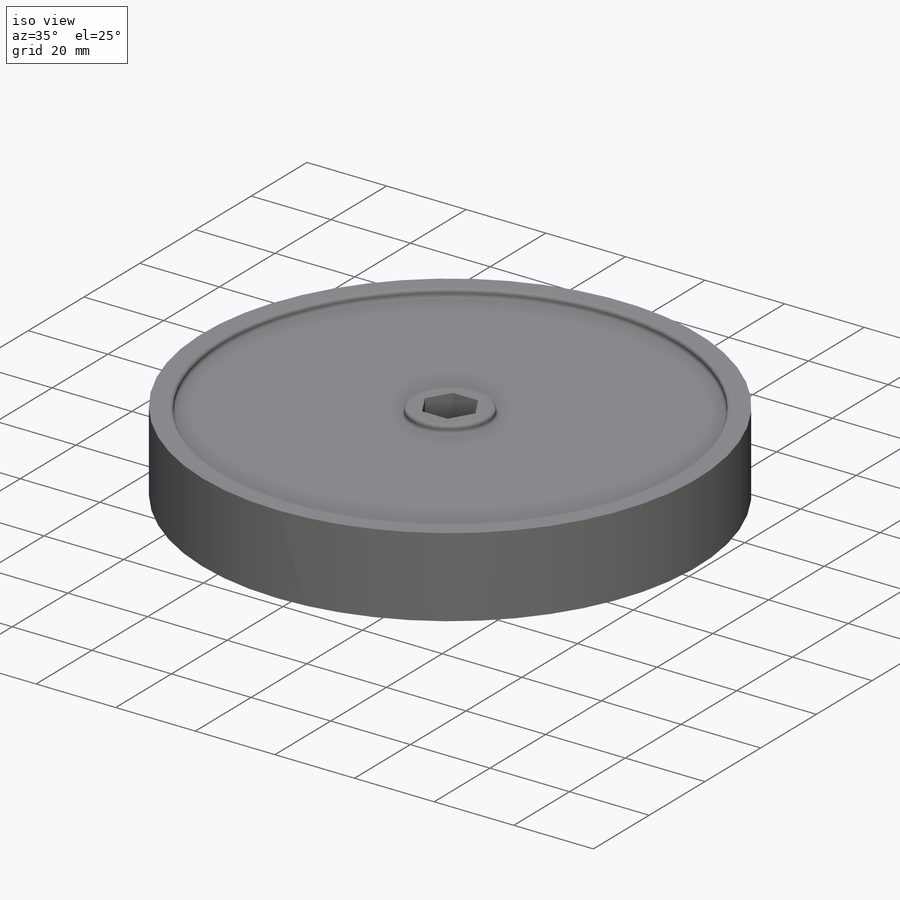
[diagram: iso view]
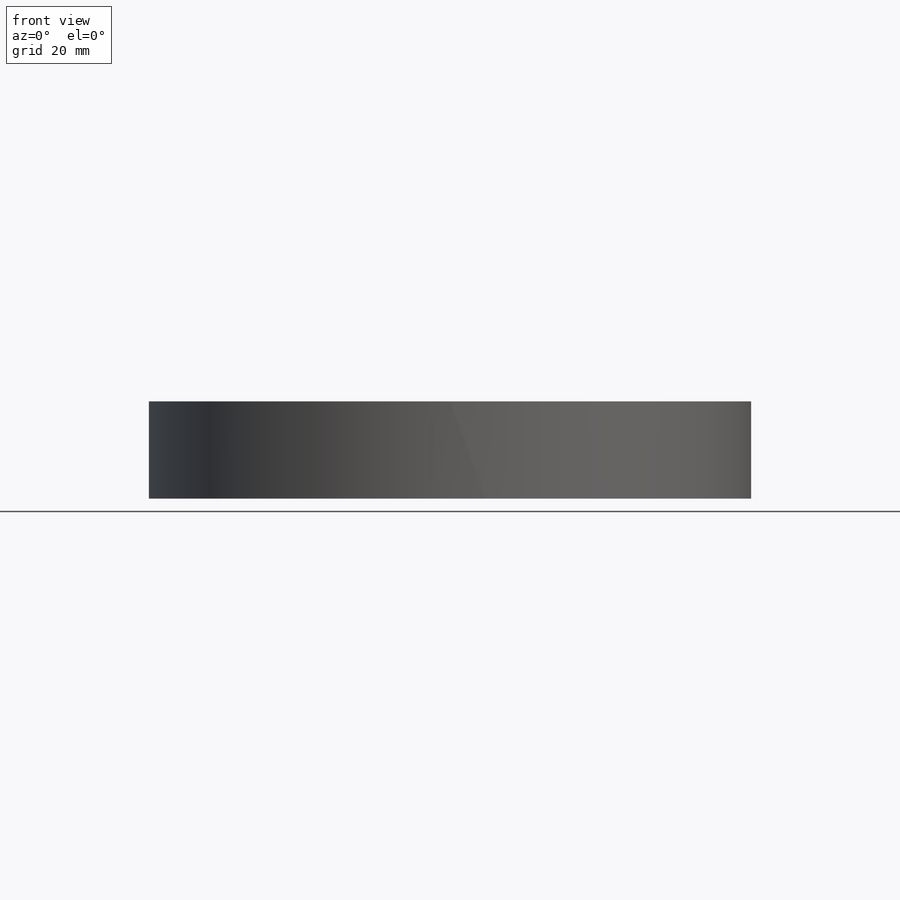
[diagram: front view]
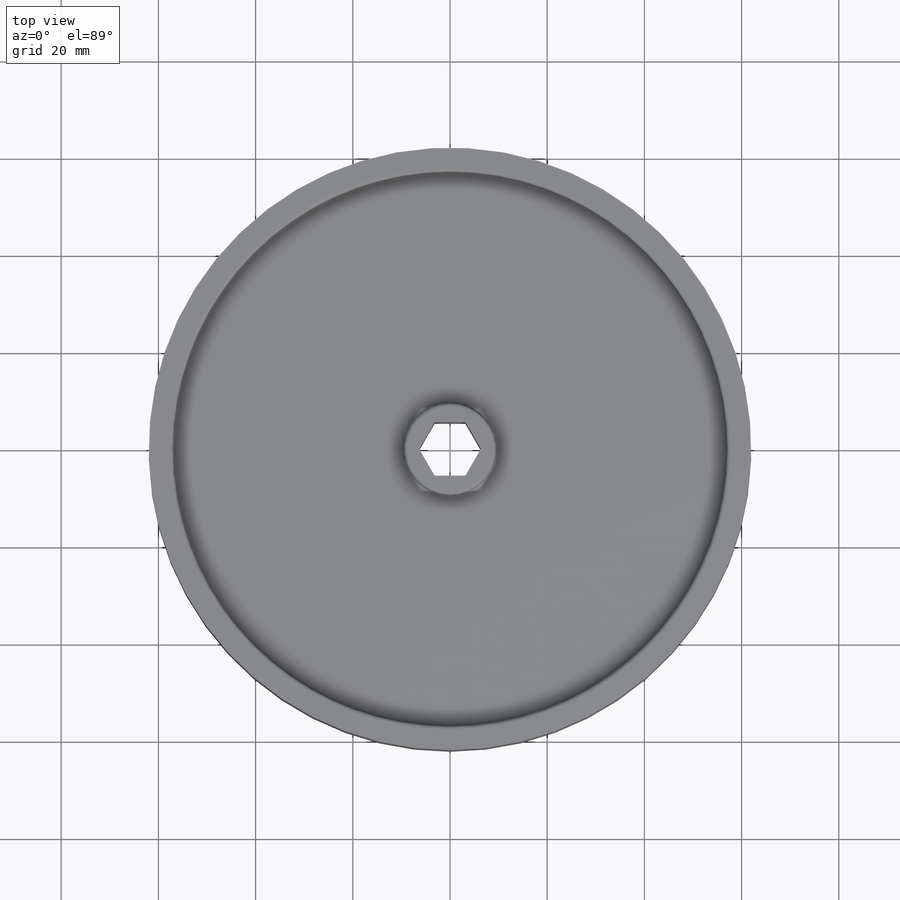
[diagram: top view]
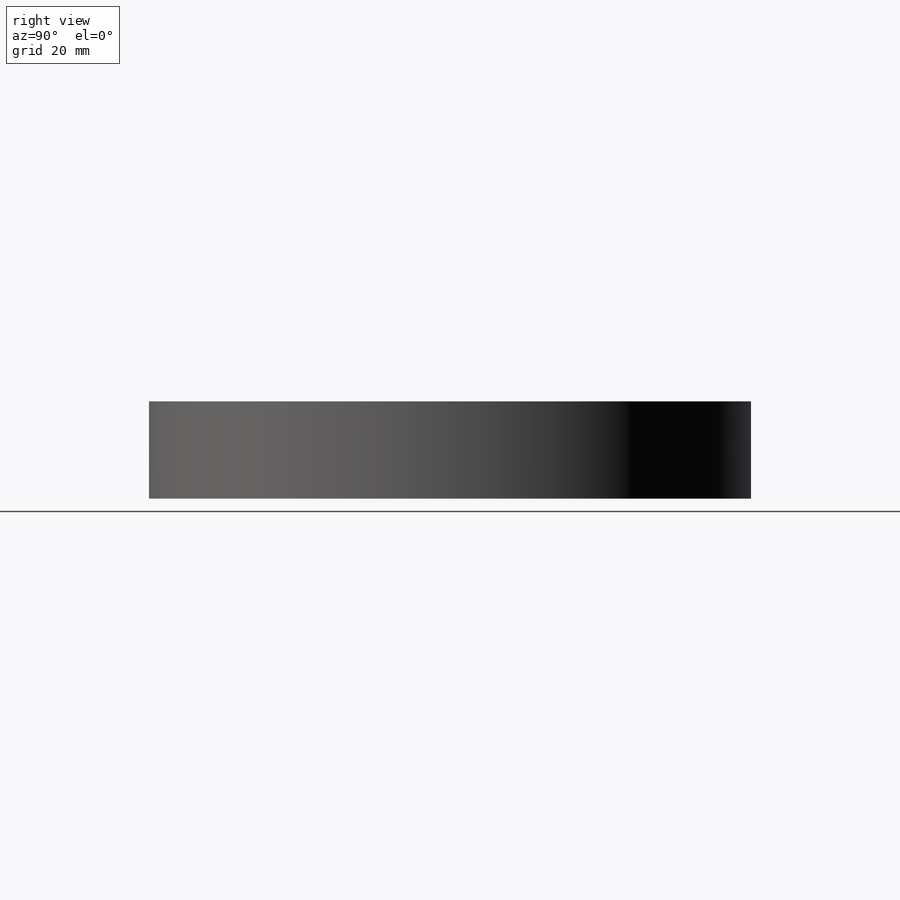
[diagram: right view]
SOLIDWORKS PART (.sldprt)
format: sldprt  version: not decoded by parser v0  size: 389,632 bytes
history: native  units: mm
features: plane x4, sketch x4, cut_extrude x2, material x1, revolve x1, extrude x1, mirror x1, fillet x1 (+10 scaffold rows collapsed)
feature tree (25):
  scaffold x10  (default folders/planes/origin — collapsed)
  material  "Materiale <non specificato>"
  plane  "Piano frontale"
  plane  "Piano superiore"
  plane  "Piano destro"
  plane  "Piano1"
  sketch  "Schizzo1"  dims[D1=36.5mm D2=10.0mm]
  revolve  "Rivoluzione1"  Angle=360deg
  sketch  "Schizzo9"  dims[D1=5.0mm]
  cut_extrude  "Taglio-Estrusione2"  Depth=2mm
  sketch  "Schizzo10"  dims[D1=19.0mm]
  extrude  "Estrusione-Estrusione3"  Depth=2mm
  mirror  "Specchia1"
  sketch  "Schizzo8"
  cut_extrude  "Taglio-Estrusione1"  [1 undecoded]
  fillet  "Raccordo1"  Radius=0.75mm
decode coverage: 7 of 10 modeling features carry decoded parameters
note: 1 parameter value undecoded
note: suppression state not decoded; provenance and decode notes live in map.json
